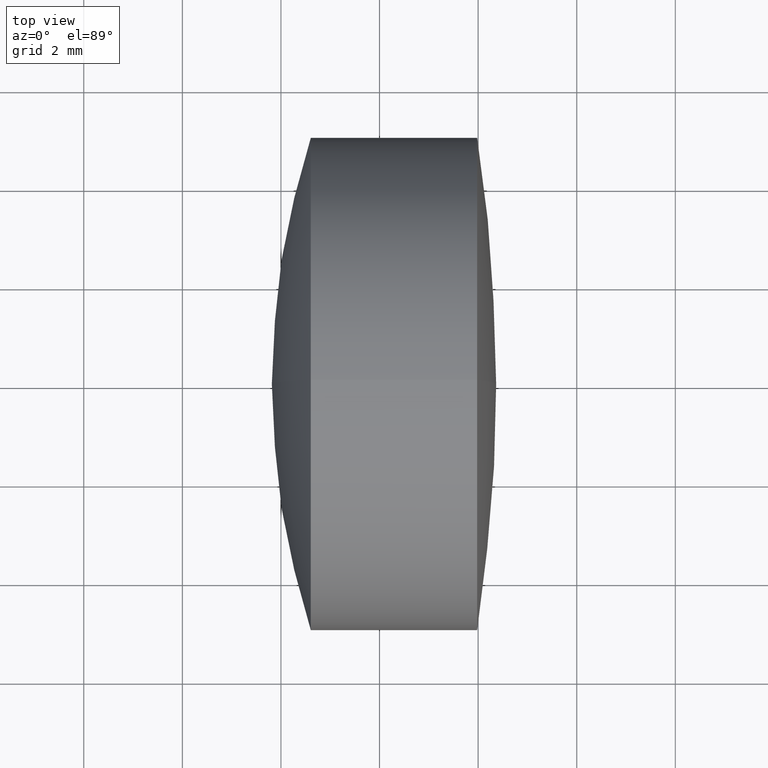
[diagram: clean part render]
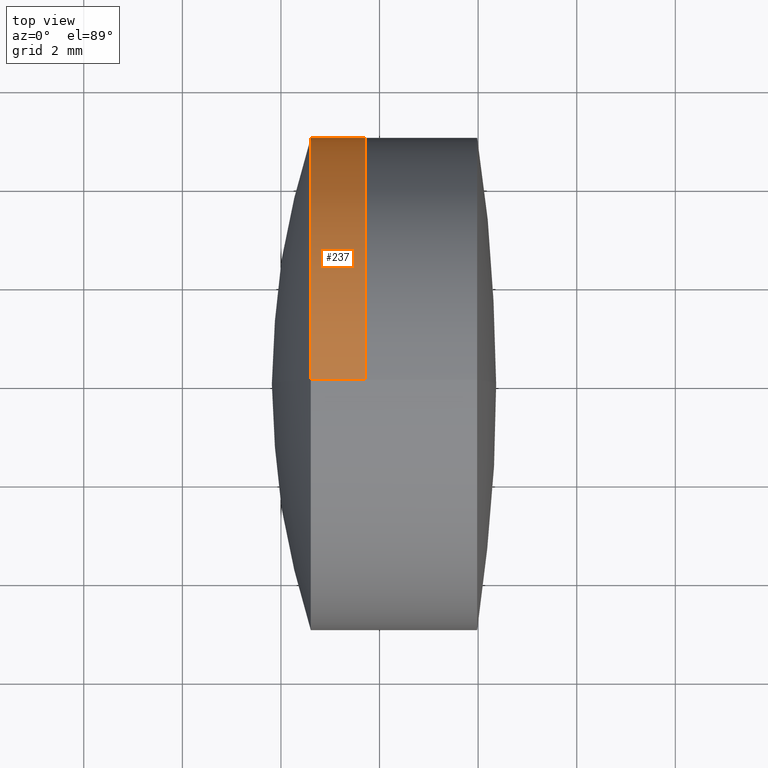
[diagram: same view with one face highlighted and labeled with its STEP entity id]
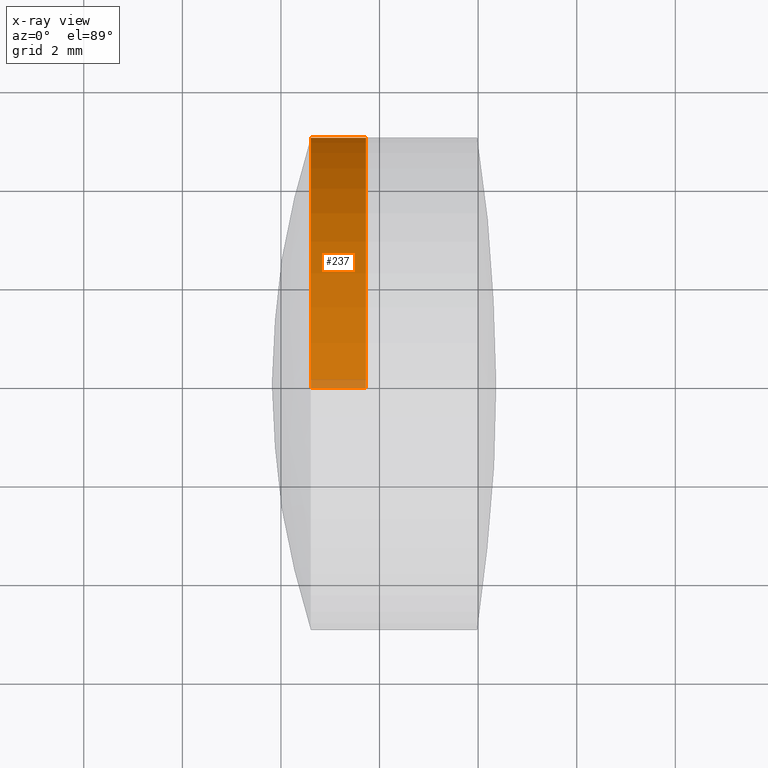
[diagram: x-ray of the same camera — body ghosted, the highlighted face saturated]
A machine part, top view. The second image highlights one B-rep face of the part: STEP entity #237.
The next image is the same camera in x-ray: the body ghosted, the highlighted face saturated — about 3% of this face is hidden behind the body in this view.
In plain terms, the highlighted cylindrical surface (partial cylindrical patch) has radius 5 mm, axis along (-1, -0, -0).
Its self-contained STEP definition (entity closure, byte-faithful):
#5 = CARTESIAN_POINT ( 'NONE',  ( 2.605354894896702700, 0.0000000000000000000, 5.000000000000002700 ) ) ;
#14 = VECTOR ( 'NONE', #209, 1000.000000000000000 ) ;
#26 = CARTESIAN_POINT ( 'NONE',  ( 2.605354894896700900, 0.0000000000000000000, 0.0000000000000000000 ) ) ;
#55 = EDGE_CURVE ( 'NONE', #59, #318, #337, .T. ) ;
#59 = VERTEX_POINT ( 'NONE', #5 ) ;
#64 = DIRECTION ( 'NONE',  ( 0.0000000000000000000, 0.0000000000000000000, 1.000000000000000000 ) ) ;
#82 = ORIENTED_EDGE ( 'NONE', *, *, #213, .T. ) ;
#88 = CARTESIAN_POINT ( 'NONE',  ( -9.702612178336682500, 0.0000000000000000000, 5.000000000000000000 ) ) ;
#91 = AXIS2_PLACEMENT_3D ( 'NONE', #208, #270, #64 ) ;
#117 = DIRECTION ( 'NONE',  ( -1.000000000000000000, -0.0000000000000000000, -0.0000000000000000000 ) ) ;
#139 = ORIENTED_EDGE ( 'NONE', *, *, #178, .T. ) ;
#154 = LINE ( 'NONE', #177, #275 ) ;
#159 = LINE ( 'NONE', #88, #14 ) ;
#172 = FACE_OUTER_BOUND ( 'NONE', #313, .T. ) ;
#177 = CARTESIAN_POINT ( 'NONE',  ( -9.702612178336682500, 6.123233995736766300E-016, -5.000000000000000000 ) ) ;
#178 = EDGE_CURVE ( 'NONE', #305, #243, #340, .T. ) ;
#182 = CARTESIAN_POINT ( 'NONE',  ( 2.605354894896702700, 6.123233995736769200E-016, -5.000000000000002700 ) ) ;
#186 = DIRECTION ( 'NONE',  ( 0.0000000000000000000, 0.0000000000000000000, 1.000000000000000000 ) ) ;
#189 = AXIS2_PLACEMENT_3D ( 'NONE', #277, #225, #186 ) ;
#190 = DIRECTION ( 'NONE',  ( -1.000000000000000000, -0.0000000000000000000, -0.0000000000000000000 ) ) ;
#195 = EDGE_CURVE ( 'NONE', #305, #59, #159, .T. ) ;
#201 = ORIENTED_EDGE ( 'NONE', *, *, #55, .F. ) ;
#208 = CARTESIAN_POINT ( 'NONE',  ( 3.722280238489432700, 0.0000000000000000000, 0.0000000000000000000 ) ) ;
#209 = DIRECTION ( 'NONE',  ( -1.000000000000000000, -0.0000000000000000000, -0.0000000000000000000 ) ) ;
#213 = EDGE_CURVE ( 'NONE', #243, #318, #154, .T. ) ;
#221 = ORIENTED_EDGE ( 'NONE', *, *, #195, .F. ) ;
#224 = AXIS2_PLACEMENT_3D ( 'NONE', #26, #190, #282 ) ;
#225 = DIRECTION ( 'NONE',  ( -1.000000000000000000, -0.0000000000000000000, -0.0000000000000000000 ) ) ;
#237 = ADVANCED_FACE ( 'NONE', ( #172 ), #334, .T. ) ;
#243 = VERTEX_POINT ( 'NONE', #330 ) ;
#270 = DIRECTION ( 'NONE',  ( -1.000000000000000000, -0.0000000000000000000, -0.0000000000000000000 ) ) ;
#275 = VECTOR ( 'NONE', #117, 1000.000000000000000 ) ;
#277 = CARTESIAN_POINT ( 'NONE',  ( -9.702612178336682500, 0.0000000000000000000, 0.0000000000000000000 ) ) ;
#282 = DIRECTION ( 'NONE',  ( 0.0000000000000000000, 0.0000000000000000000, 1.000000000000000000 ) ) ;
#305 = VERTEX_POINT ( 'NONE', #323 ) ;
#313 = EDGE_LOOP ( 'NONE', ( #139, #82, #201, #221 ) ) ;
#318 = VERTEX_POINT ( 'NONE', #182 ) ;
#323 = CARTESIAN_POINT ( 'NONE',  ( 3.722280238489432700, 0.0000000000000000000, 5.000000000000000000 ) ) ;
#330 = CARTESIAN_POINT ( 'NONE',  ( 3.722280238489432700, 6.123233995736766300E-016, -5.000000000000000000 ) ) ;
#334 = CYLINDRICAL_SURFACE ( 'NONE', #189, 5.000000000000000000 ) ;
#337 = CIRCLE ( 'NONE', #224, 5.000000000000000000 ) ;
#340 = CIRCLE ( 'NONE', #91, 5.000000000000000000 ) ;